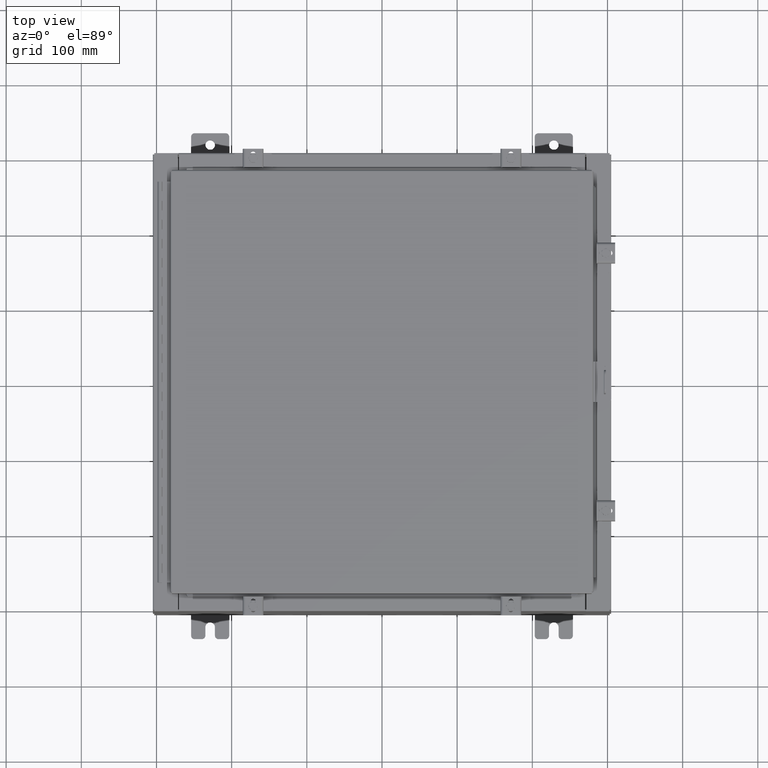
[diagram: clean part render]
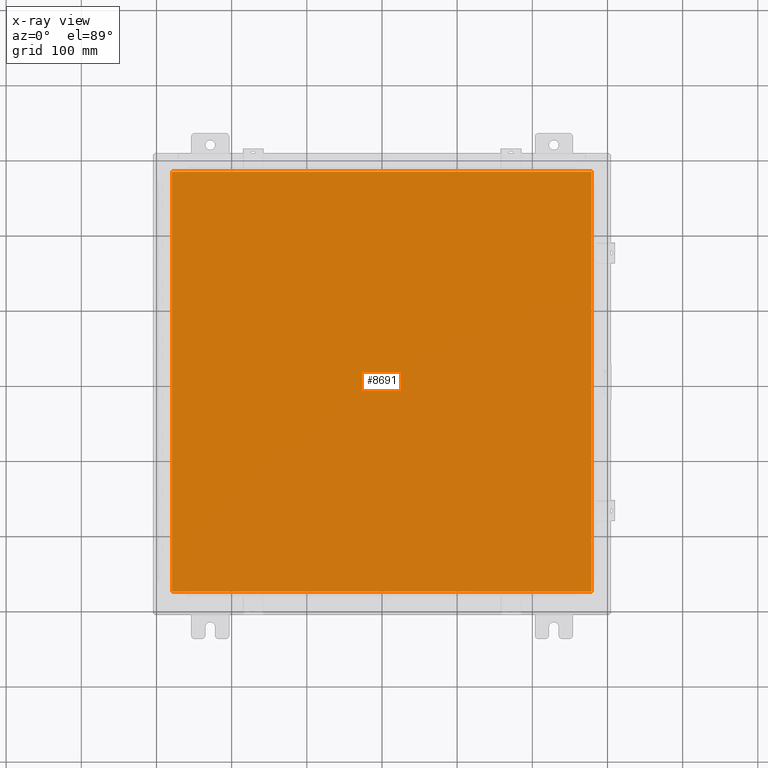
[diagram: x-ray — body ghosted, one internal face saturated and labeled with its STEP entity id]
A machine part, top view, then the same camera in x-ray: the body is ghosted and one INTERNAL B-rep face — a face not visible from any outside direction — is saturated and labeled: STEP entity #8691.
In plain terms, the highlighted planar face has unit normal (0, 0, -1).
Its self-contained STEP definition (entity closure, byte-faithful):
#204 = FACE_OUTER_BOUND ( 'NONE', #21022, .T. ) ;
#1384 = CARTESIAN_POINT ( 'NONE',  ( 10.99029999999999600, 11.00629999999999600, -0.07470000000000000300 ) ) ;
#2818 = CARTESIAN_POINT ( 'NONE',  ( 0.0000000000000000000, 0.0000000000000000000, -0.07470000000000000300 ) ) ;
#3009 = VECTOR ( 'NONE', #8195, 39.37007874015748100 ) ;
#4464 = DIRECTION ( 'NONE',  ( 1.000000000000000000, -0.0000000000000000000, -0.0000000000000000000 ) ) ;
#4964 = EDGE_CURVE ( 'NONE', #24880, #11453, #17546, .T. ) ;
#5721 = CARTESIAN_POINT ( 'NONE',  ( -10.99030000000000500, 11.00629999999999600, -0.07470000000000133500 ) ) ;
#5968 = VECTOR ( 'NONE', #21665, 39.37007874015748100 ) ;
#6353 = EDGE_CURVE ( 'NONE', #31016, #24880, #23370, .T. ) ;
#6356 = ORIENTED_EDGE ( 'NONE', *, *, #18143, .F. ) ;
#6607 = ORIENTED_EDGE ( 'NONE', *, *, #6353, .F. ) ;
#7731 = PLANE ( 'NONE',  #17410 ) ;
#8195 = DIRECTION ( 'NONE',  ( 0.0000000000000000000, -1.000000000000000000, 0.0000000000000000000 ) ) ;
#8691 = ADVANCED_FACE ( 'NONE', ( #204 ), #7731, .T. ) ;
#10870 = VECTOR ( 'NONE', #21145, 39.37007874015748100 ) ;
#11453 = VERTEX_POINT ( 'NONE', #1384 ) ;
#12741 = DIRECTION ( 'NONE',  ( -1.000000000000000000, 0.0000000000000000000, -0.0000000000000000000 ) ) ;
#13355 = LINE ( 'NONE', #21554, #5968 ) ;
#16653 = VECTOR ( 'NONE', #4464, 39.37007874015748100 ) ;
#17410 = AXIS2_PLACEMENT_3D ( 'NONE', #2818, #27894, #12741 ) ;
#17546 = LINE ( 'NONE', #31160, #10870 ) ;
#18143 = EDGE_CURVE ( 'NONE', #11453, #20569, #13355, .T. ) ;
#18591 = CARTESIAN_POINT ( 'NONE',  ( -10.99030000000000000, -11.00630000000000100, -0.07470000000000000300 ) ) ;
#20569 = VERTEX_POINT ( 'NONE', #24088 ) ;
#21022 = EDGE_LOOP ( 'NONE', ( #27030, #6607, #31519, #6356 ) ) ;
#21145 = DIRECTION ( 'NONE',  ( 0.0000000000000000000, 1.000000000000000000, 0.0000000000000000000 ) ) ;
#21554 = CARTESIAN_POINT ( 'NONE',  ( 10.99029999999999800, 11.00629999999999600, -0.07470000000000019700 ) ) ;
#21665 = DIRECTION ( 'NONE',  ( -1.000000000000000000, -0.0000000000000000000, -0.0000000000000000000 ) ) ;
#21945 = CARTESIAN_POINT ( 'NONE',  ( -10.99030000000000000, -11.00630000000000100, -0.07469999999999910000 ) ) ;
#22912 = LINE ( 'NONE', #5721, #3009 ) ;
#23370 = LINE ( 'NONE', #21945, #16653 ) ;
#24088 = CARTESIAN_POINT ( 'NONE',  ( -10.99030000000000100, 11.00629999999999600, -0.07470000000000000300 ) ) ;
#24880 = VERTEX_POINT ( 'NONE', #28048 ) ;
#27030 = ORIENTED_EDGE ( 'NONE', *, *, #4964, .F. ) ;
#27894 = DIRECTION ( 'NONE',  ( 0.0000000000000000000, 0.0000000000000000000, -1.000000000000000000 ) ) ;
#28048 = CARTESIAN_POINT ( 'NONE',  ( 10.99029999999999600, -11.00630000000000100, -0.07470000000000000300 ) ) ;
#31016 = VERTEX_POINT ( 'NONE', #18591 ) ;
#31160 = CARTESIAN_POINT ( 'NONE',  ( 10.99029999999999600, -11.00630000000000100, -0.07470000000000019700 ) ) ;
#31519 = ORIENTED_EDGE ( 'NONE', *, *, #32244, .F. ) ;
#32244 = EDGE_CURVE ( 'NONE', #20569, #31016, #22912, .T. ) ;